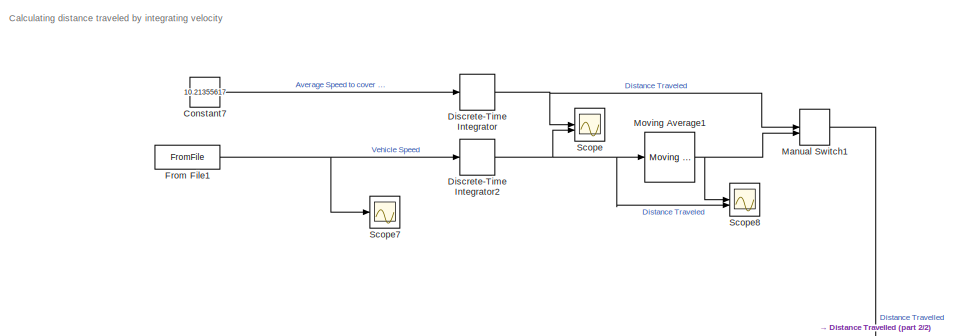
[diagram: root canvas - part 1/2, top left region]
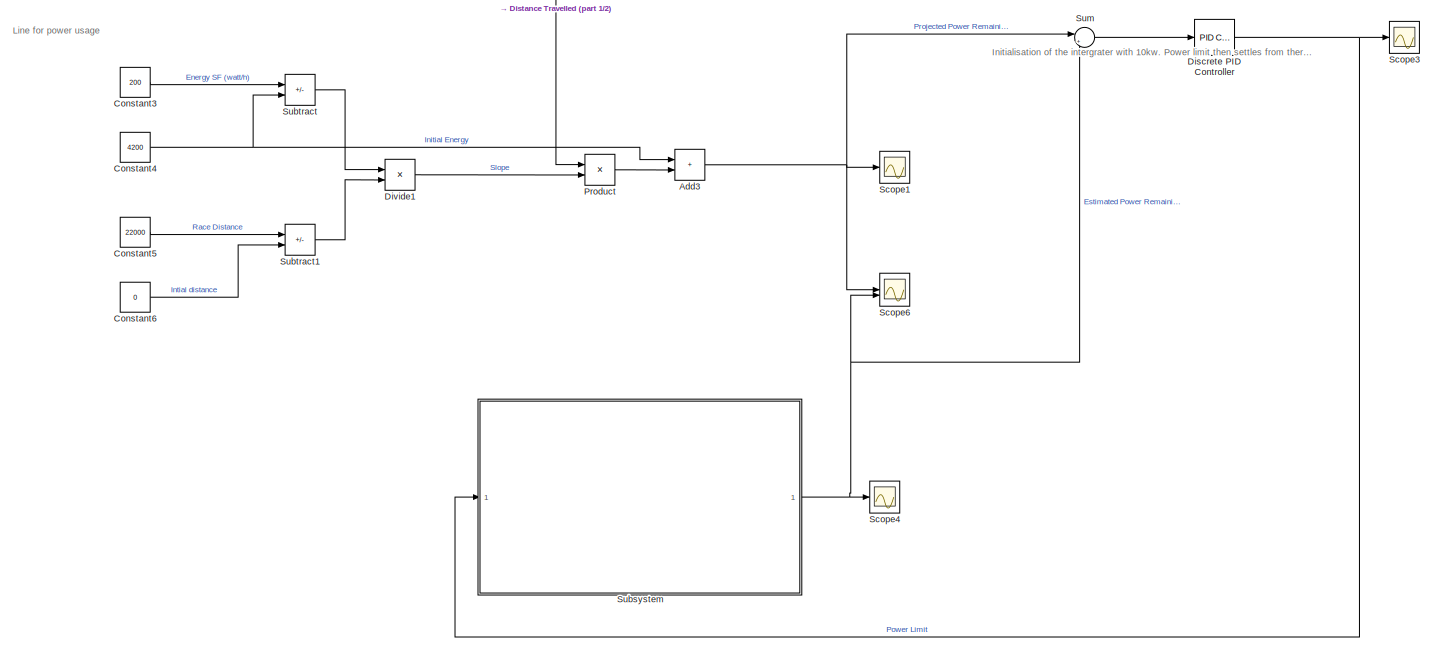
[diagram: root canvas - part 2/2, full width, bottom band]
MODEL slx_6b3534cd506d
KIND model
CONFIG AbsTol = auto
CONFIG EnableMultiTasking = off
CONFIG FixedStep = auto
CONFIG MaxStep = auto
CONFIG MinStep = auto
CONFIG RelTol = 1e-3
CONFIG SampleTimeConstraint = Unconstrained
CONFIG SolverName = VariableStepAuto
CONFIG StartTime = 0.0
CONFIG StopTime = 2154
BLOCK [Sum] Add3
  IconShape = rectangular
BLOCK [Constant] Constant3
  Value = 200
BLOCK [Constant] Constant4
  Value = 4200
BLOCK [Constant] Constant5
  Value = 22000
BLOCK [Constant] Constant6
  Value = 0
BLOCK [Constant] Constant7
  Value = 10.21355617
BLOCK [Reference] Discrete PID Controller  REF=slpidlib/PID Controller
  LibrarySourceBlock = simulink/Discrete/Discrete PID Controller
  SourceBlock = slpidlib/PID Controller
  SourceType = PID 1dof
BLOCK [DiscreteIntegrator] Discrete-Time Integrator
  ICPrevOutput = DiscIntNeverNeededParam
  ICPrevScaledInput = DiscIntNeverNeededParam
  InitialConditionSetting = Auto
  SampleTime = 0.01
BLOCK [DiscreteIntegrator] Discrete-Time Integrator2
  ICPrevOutput = DiscIntNeverNeededParam
  ICPrevScaledInput = DiscIntNeverNeededParam
  InitialConditionSetting = Auto
  SampleTime = 0.01
BLOCK [Product] Divide1
  Inputs = */
BLOCK [FromFile] From File1
  FileName = simspeed.mat
  SampleTime = 0.01
BLOCK [ManualSwitch] Manual Switch1
  CurrentSetting = 0
BLOCK [Reference] Moving Average1  REF=dspstat3/Moving
Average
  SourceBlock = dspstat3/Moving\nAverage
  SourceType = dsp.simulink.MovingAverage
BLOCK [Product] Product
BLOCK [Scope] Scope
  Floating = off
  NumInputPorts = 2
  ScopeSpecificationString = Simulink.scopes.TimeScopeBlockCfg('CurrentConfiguration', extmgr.ConfigurationSet(extmgr.Configuration('Core','General UI',true),extmgr.Configuration('Core','Source UI',true),extmgr.Configuration('Sources','WiredSimulink',true),extmgr.Configuration('Visuals','Time Domain',true,'SerializedDisplays',{struct('MinYLimReal','-2750.00000','MaxYLimReal','24749.99999','YLabelReal','','MinYLimMag','  0.000...<+2063ch>
BLOCK [Scope] Scope1
  Floating = off
  NumInputPorts = 1
  ScopeSpecificationString = Simulink.scopes.TimeScopeBlockCfg('CurrentConfiguration', extmgr.ConfigurationSet(extmgr.Configuration('Core','General UI',true),extmgr.Configuration('Core','Source UI',true),extmgr.Configuration('Sources','WiredSimulink',true,'DataLoggingVariableName','ScopeData1'),extmgr.Configuration('Visuals','Time Domain',true,'SerializedDisplays',{struct('MinYLimReal','-291.81896','MaxYLimReal','4699.091','Y...<+1483ch>
BLOCK [Scope] Scope3
  Floating = off
  NumInputPorts = 1
  ScopeSpecificationString = Simulink.scopes.TimeScopeBlockCfg('CurrentConfiguration', extmgr.ConfigurationSet(extmgr.Configuration('Core','General UI',true,'FigureColor',[1 1 1]),extmgr.Configuration('Core','Source UI',true),extmgr.Configuration('Sources','WiredSimulink',true,'DataLoggingVariableName','ScopeData3'),extmgr.Configuration('Visuals','Time Domain',true,'SerializedDisplays',{struct('MinYLimReal','9423.06171','MaxY...<+1671ch>
BLOCK [Scope] Scope4
  Floating = off
  NumInputPorts = 1
  ScopeSpecificationString = Simulink.scopes.TimeScopeBlockCfg('CurrentConfiguration', extmgr.ConfigurationSet(extmgr.Configuration('Core','General UI',true),extmgr.Configuration('Core','Source UI',true),extmgr.Configuration('Sources','WiredSimulink',true,'DataLoggingVariableName','ScopeData4'),extmgr.Configuration('Visuals','Time Domain',true,'SerializedDisplays',{struct('MinYLimReal','-318.56253','MaxYLimReal','4702.0625','...<+1471ch>
BLOCK [Scope] Scope6
  Floating = off
  NumInputPorts = 2
  ScopeSpecificationString = Simulink.scopes.TimeScopeBlockCfg('CurrentConfiguration', extmgr.ConfigurationSet(extmgr.Configuration('Core','General UI',true,'FigureColor',[1 1 1]),extmgr.Configuration('Core','Source UI',true),extmgr.Configuration('Sources','WiredSimulink',true,'DataLoggingVariableName','ScopeData6'),extmgr.Configuration('Visuals','Time Domain',true,'SerializedDisplays',{struct('MinYLimReal','-360.82915','MaxY...<+1743ch>
BLOCK [Scope] Scope7
  Floating = off
  NumInputPorts = 1
  ScopeSpecificationString = Simulink.scopes.TimeScopeBlockCfg('CurrentConfiguration', extmgr.ConfigurationSet(extmgr.Configuration('Core','General UI',true),extmgr.Configuration('Core','Source UI',true),extmgr.Configuration('Sources','WiredSimulink',true,'DataLoggingVariableName','ScopeData1'),extmgr.Configuration('Visuals','Time Domain',true,'SerializedDisplays',{struct('MinYLimReal','-0.76263','MaxYLimReal','28.39208','YLa...<+1465ch>
BLOCK [Scope] Scope8
  Floating = off
  NumInputPorts = 2
  ScopeSpecificationString = Simulink.scopes.TimeScopeBlockCfg('CurrentConfiguration', extmgr.ConfigurationSet(extmgr.Configuration('Core','General UI',true),extmgr.Configuration('Core','Source UI',true),extmgr.Configuration('Sources','WiredSimulink',true,'DataLoggingVariableName','ScopeData1'),extmgr.Configuration('Visuals','Time Domain',true,'SerializedDisplays',{struct('MinYLimReal','12791.71974','MaxYLimReal','14830.95483...<+1557ch>
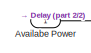
[diagram: Subsystem - part 1/2, top right region]
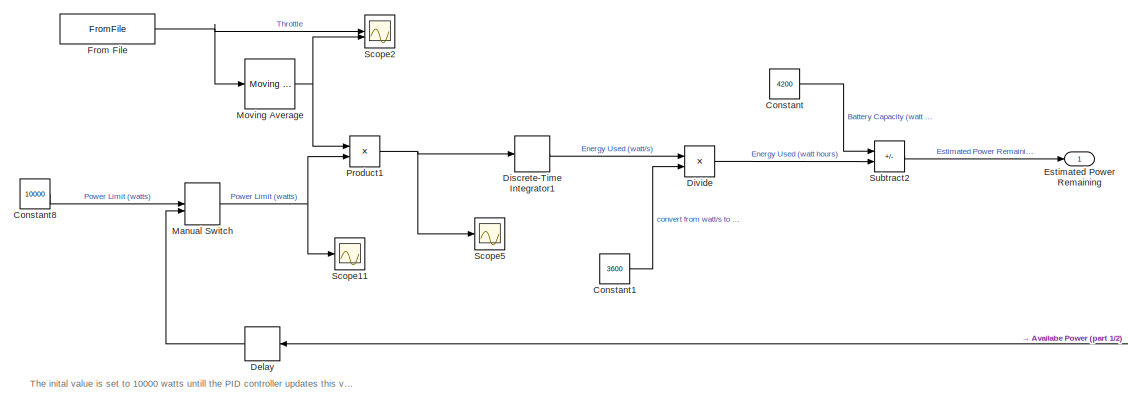
[diagram: Subsystem - part 2/2, bottom left region]
BLOCK [SubSystem] Subsystem
BLOCK [Inport] Subsystem/Availabe Power
BLOCK [Constant] Subsystem/Constant
  Value = 4200
BLOCK [Constant] Subsystem/Constant1
  Value = 3600
BLOCK [Constant] Subsystem/Constant8
  Value = 10000
BLOCK [Delay] Subsystem/Delay
  DelayLength = 1
  InitialCondition = 10000
  InputPortMap = u0
BLOCK [DiscreteIntegrator] Subsystem/Discrete-Time Integrator1
  ICPrevOutput = DiscIntNeverNeededParam
  ICPrevScaledInput = DiscIntNeverNeededParam
  InitialConditionSetting = Auto
  SampleTime = 0.01
BLOCK [Product] Subsystem/Divide
  Inputs = */
BLOCK [Outport] Subsystem/Estimated Power Remaining
BLOCK [FromFile] Subsystem/From File
  FileName = endurancedata.mat
  SampleTime = 0.01
BLOCK [ManualSwitch] Subsystem/Manual Switch
  CurrentSetting = 0
BLOCK [Reference] Subsystem/Moving Average  REF=dspstat3/Moving
Average
  SourceBlock = dspstat3/Moving\nAverage
  SourceType = dsp.simulink.MovingAverage
BLOCK [Product] Subsystem/Product1
BLOCK [Scope] Subsystem/Scope11
  Floating = off
  NumInputPorts = 1
  ScopeSpecificationString = Simulink.scopes.TimeScopeBlockCfg('CurrentConfiguration', extmgr.ConfigurationSet(extmgr.Configuration('Core','General UI',true),extmgr.Configuration('Core','Source UI',true),extmgr.Configuration('Sources','WiredSimulink',true,'DataLoggingVariableName','ScopeData1'),extmgr.Configuration('Visuals','Time Domain',true,'SerializedDisplays',{struct('MinYLimReal','-1373.6153','MaxYLimReal','12359.40527'...<+1535ch>
BLOCK [Scope] Subsystem/Scope2
  Floating = off
  NumInputPorts = 2
  ScopeSpecificationString = Simulink.scopes.TimeScopeBlockCfg('CurrentConfiguration', extmgr.ConfigurationSet(extmgr.Configuration('Core','General UI',true),extmgr.Configuration('Core','Source UI',true),extmgr.Configuration('Sources','WiredSimulink',true,'DataLoggingVariableName','ScopeData2'),extmgr.Configuration('Visuals','Time Domain',true,'SerializedDisplays',{struct('MinYLimReal','0.99117','MaxYLimReal','1.00417','YLabe...<+1515ch>
BLOCK [Scope] Subsystem/Scope5
  Floating = off
  NumInputPorts = 1
  ScopeSpecificationString = Simulink.scopes.TimeScopeBlockCfg('CurrentConfiguration', extmgr.ConfigurationSet(extmgr.Configuration('Core','General UI',true),extmgr.Configuration('Core','Source UI',true),extmgr.Configuration('Sources','WiredSimulink',true,'DataLoggingVariableName','ScopeData5'),extmgr.Configuration('Visuals','Time Domain',true,'SerializedDisplays',{struct('MinYLimReal','7999.98222','MaxYLimReal','8000.01146',...<+1497ch>
BLOCK [Sum] Subsystem/Subtract2
  IconShape = rectangular
  Inputs = +-
BLOCK [Sum] Subtract
  IconShape = rectangular
  Inputs = +-
BLOCK [Sum] Subtract1
  IconShape = rectangular
  Inputs = +-
BLOCK [Sum] Sum
  Inputs = |+-
ANNOTATION (root): Calculating distance traveled by integrating velocity
ANNOTATION (root): Initialisation of the intergrater with 10kw. Power limit then settles from there.
ANNOTATION (root): Line for power usage
ANNOTATION Subsystem: The inital value is set to 10000 watts untill the PID controller updates this value
NET Add3:1 -> Scope1:1, Scope6:1, Sum:1
LINE Constant3:1 -> Subtract:1
NET Constant4:1 -> Add3:1, Subtract:2
LINE Constant5:1 -> Subtract1:1
LINE Constant6:1 -> Subtract1:2
LINE Constant7:1 -> Discrete-Time Integrator:1
NET Discrete PID Controller:1 -> Scope3:1, Subsystem:1
NET Discrete-Time Integrator2:1 -> Moving Average1:1, Scope8:2, Scope:2
NET Discrete-Time Integrator:1 -> Manual Switch1:1, Scope:1
LINE Divide1:1 -> Product:2
NET From File1:1 -> Discrete-Time Integrator2:1, Scope7:1
LINE Manual Switch1:1 -> Product:1
NET Moving Average1:1 -> Manual Switch1:2, Scope8:1
LINE Product:1 -> Add3:2
LINE Subsystem/Availabe Power:1 -> Subsystem/Delay:1
LINE Subsystem/Constant1:1 -> Subsystem/Divide:2
LINE Subsystem/Constant8:1 -> Subsystem/Manual Switch:1
LINE Subsystem/Constant:1 -> Subsystem/Subtract2:1
LINE Subsystem/Delay:1 -> Subsystem/Manual Switch:2
LINE Subsystem/Discrete-Time Integrator1:1 -> Subsystem/Divide:1
LINE Subsystem/Divide:1 -> Subsystem/Subtract2:2
NET Subsystem/From File:1 -> Subsystem/Moving Average:1, Subsystem/Scope2:1
NET Subsystem/Manual Switch:1 -> Subsystem/Product1:2, Subsystem/Scope11:1
NET Subsystem/Moving Average:1 -> Subsystem/Product1:1, Subsystem/Scope2:2
NET Subsystem/Product1:1 -> Subsystem/Discrete-Time Integrator1:1, Subsystem/Scope5:1
LINE Subsystem/Subtract2:1 -> Subsystem/Estimated Power Remaining:1
NET Subsystem:1 -> Scope4:1, Scope6:2, Sum:2
LINE Subtract1:1 -> Divide1:2
LINE Subtract:1 -> Divide1:1
LINE Sum:1 -> Discrete PID Controller:1
note: NET lines group one-source signal fan-out (src -> all destinations, sorted); 1:1 wires keep LINE
